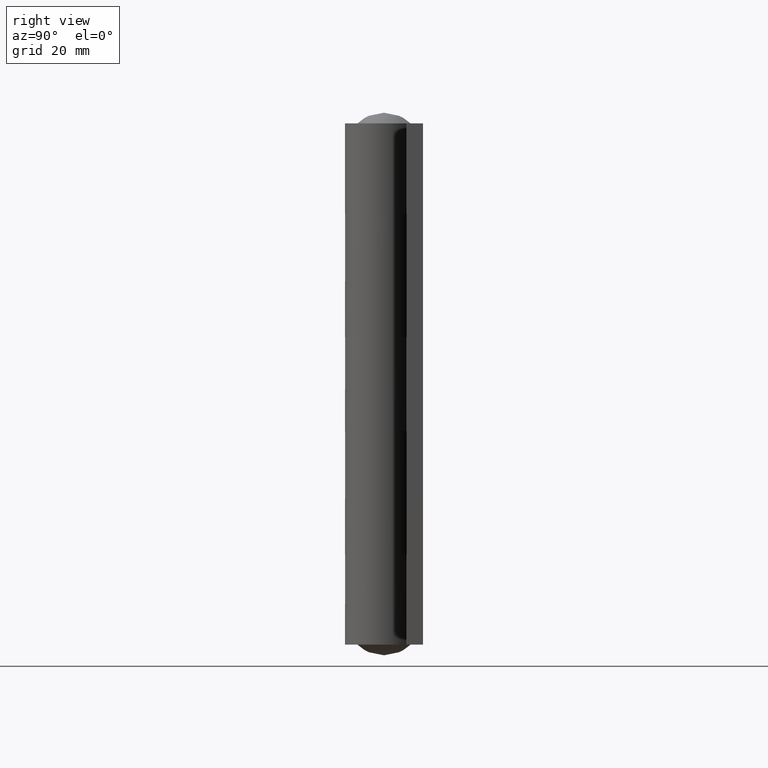
[diagram: clean part render]
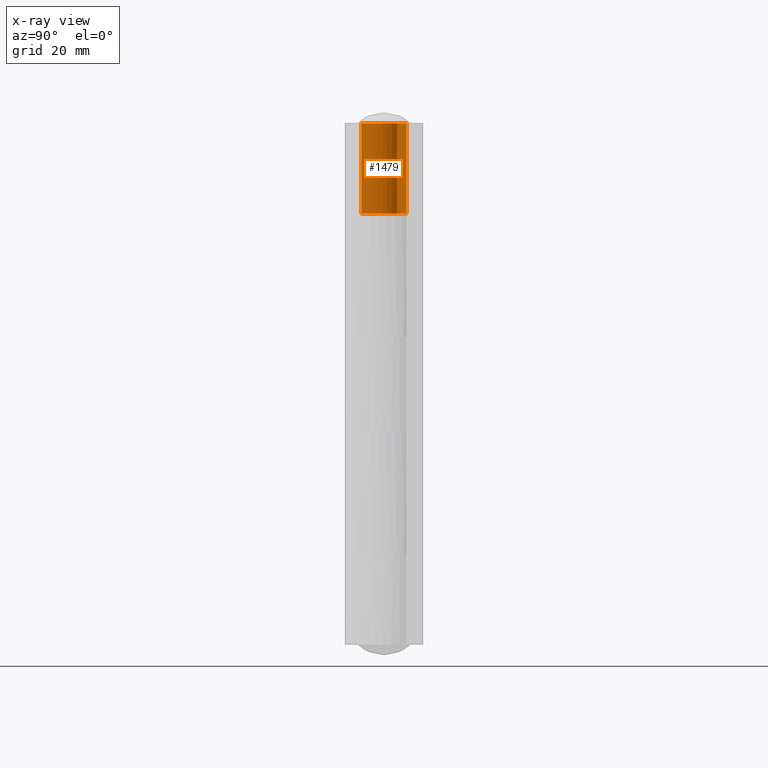
[diagram: x-ray — body ghosted, one internal face saturated and labeled with its STEP entity id]
A machine part, right view, then the same camera in x-ray: the body is ghosted and one INTERNAL B-rep face — a face not visible from any outside direction — is saturated and labeled: STEP entity #1479.
In plain terms, the highlighted face is a freeform B-spline surface patch.
Its self-contained STEP definition (entity closure, byte-faithful):
#1077=CARTESIAN_POINT('',(0.0,5.500000000000000,105.0));
#1078=VERTEX_POINT('',#1077);
#1084=CARTESIAN_POINT('',(4.504921131877020,3.155263157894740,105.0));
#1085=VERTEX_POINT('',#1084);
#1086=CARTESIAN_POINT('',(4.504921131877016,3.155263157894741,105.0));
#1087=CARTESIAN_POINT('',(6.981271274198795,-0.380341172970454,105.0));
#1088=CARTESIAN_POINT('',(4.135476776258408,-3.625993909678746,105.0));
#1089=CARTESIAN_POINT('',(1.289682278318024,-6.871646646387037,105.0));
#1090=CARTESIAN_POINT('',(-2.539296421410751,-4.878726645776596,105.0));
#1091=CARTESIAN_POINT('',(-6.368275121139528,-2.885806645166154,105.0));
#1092=CARTESIAN_POINT('',(-5.342424381859385,1.307096677416922,105.0));
#1093=CARTESIAN_POINT('',(-4.316573642579242,5.500000000000002,105.0));
#1094=CARTESIAN_POINT('',(0.0,5.500000000000000,105.0));
#1102=(BOUNDED_CURVE()B_SPLINE_CURVE(2,(#1086,#1087,#1088,#1089,#1090,#1091,#1092,#1093,#1094),.UNSPECIFIED.,.F.,.U.)B_SPLINE_CURVE_WITH_KNOTS((3,2,2,2,3),(0.0,0.250000000000000,0.500000000000000,0.750000000000000,1.0),.UNSPECIFIED.)CURVE()GEOMETRIC_REPRESENTATION_ITEM()RATIONAL_B_SPLINE_CURVE((1.0,0.786655560378407,1.0,0.786655560378407,1.0,0.786655560378407,1.0,0.786655560378407,1.0))REPRESENTATION_ITEM(''));
#1103=EDGE_CURVE('',#1085,#1078,#1102,.T.);
#1219=CARTESIAN_POINT('',(4.504921131877020,3.155263157894735,127.0));
#1220=VERTEX_POINT('',#1219);
#1226=CARTESIAN_POINT('',(0.0,5.500000000000000,127.0));
#1227=VERTEX_POINT('',#1226);
#1228=CARTESIAN_POINT('',(4.504921131877020,3.155263157894737,127.0));
#1229=CARTESIAN_POINT('',(6.981271274198794,-0.380341172970459,127.0));
#1230=CARTESIAN_POINT('',(4.135476776258405,-3.625993909678750,127.0));
#1231=CARTESIAN_POINT('',(1.289682278318015,-6.871646646387041,127.0));
#1232=CARTESIAN_POINT('',(-2.539296421410759,-4.878726645776591,127.0));
#1233=CARTESIAN_POINT('',(-6.368275121139526,-2.885806645166145,127.0));
#1234=CARTESIAN_POINT('',(-5.342424381859385,1.307096677416922,127.0));
#1235=CARTESIAN_POINT('',(-4.316573642579241,5.500000000000000,127.0));
#1236=CARTESIAN_POINT('',(0.0,5.500000000000000,127.0));
#1244=(BOUNDED_CURVE()B_SPLINE_CURVE(2,(#1228,#1229,#1230,#1231,#1232,#1233,#1234,#1235,#1236),.UNSPECIFIED.,.F.,.U.)B_SPLINE_CURVE_WITH_KNOTS((3,2,2,2,3),(0.0,0.250000000000000,0.500000000000000,0.750000000000000,1.0),.UNSPECIFIED.)CURVE()GEOMETRIC_REPRESENTATION_ITEM()RATIONAL_B_SPLINE_CURVE((1.0,0.786655560378407,1.0,0.786655560378407,1.0,0.786655560378407,1.0,0.786655560378407,1.0))REPRESENTATION_ITEM(''));
#1245=EDGE_CURVE('',#1220,#1227,#1244,.T.);
#1340=CARTESIAN_POINT('',(0.0,5.500000000000000,127.0));
#1341=CARTESIAN_POINT('',(0.0,5.500000000000000,105.0));
#1342=QUASI_UNIFORM_CURVE('',1,(#1340,#1341),.UNSPECIFIED.,.F.,.U.);
#1343=EDGE_CURVE('',#1227,#1078,#1342,.T.);
#1441=CARTESIAN_POINT('',(4.504921131877020,3.155263157894735,127.0));
#1442=CARTESIAN_POINT('',(4.504921131877020,3.155263157894740,105.0));
#1443=QUASI_UNIFORM_CURVE('',1,(#1441,#1442),.UNSPECIFIED.,.F.,.U.);
#1444=EDGE_CURVE('',#1220,#1085,#1443,.T.);
#1451=CARTESIAN_POINT('',(0.239183659999379,5.494796736621773,127.550000000000000));
#1452=CARTESIAN_POINT('',(0.239183659999379,5.494796736621773,104.436250000000000));
#1453=CARTESIAN_POINT('',(-6.793835443641496,5.800937860795292,127.550000000000010));
#1454=CARTESIAN_POINT('',(-6.793835443641496,5.800937860795292,104.436249999999990));
#1455=CARTESIAN_POINT('',(-5.389441554722914,-1.097232759365959,127.550000000000000));
#1456=CARTESIAN_POINT('',(-5.389441554722914,-1.097232759365959,104.436250000000000));
#1457=CARTESIAN_POINT('',(-3.985047665804334,-7.995403379527211,127.550000000000010));
#1458=CARTESIAN_POINT('',(-3.985047665804334,-7.995403379527211,104.436249999999990));
#1459=CARTESIAN_POINT('',(2.368464174284996,-4.963907478502039,127.550000000000000));
#1460=CARTESIAN_POINT('',(2.368464174284996,-4.963907478502039,104.436250000000000));
#1461=CARTESIAN_POINT('',(8.721976014374324,-1.932411577476869,127.550000000000010));
#1462=CARTESIAN_POINT('',(8.721976014374324,-1.932411577476869,104.436249999999990));
#1463=CARTESIAN_POINT('',(4.243474869317058,3.498988572927117,127.550000000000000));
#1464=CARTESIAN_POINT('',(4.243474869317058,3.498988572927117,104.436250000000000));
#1472=(BOUNDED_SURFACE()B_SPLINE_SURFACE(1,2,((#1451,#1453,#1455,#1457,#1459,#1461,#1463),(#1452,#1454,#1456,#1458,#1460,#1462,#1464)),.UNSPECIFIED.,.F.,.F.,.U.)B_SPLINE_SURFACE_WITH_KNOTS((2,2),(3,2,2,3),(0.0,23.113750000000021),(0.0,10.730116948448950,21.460233896897890,32.190350845346842),.UNSPECIFIED.)GEOMETRIC_REPRESENTATION_ITEM()RATIONAL_B_SPLINE_SURFACE(((1.0,0.615661475325658,1.0,0.615661475325658,1.0,0.615661475325658,1.0),(1.0,0.615661475325658,1.0,0.615661475325658,1.0,0.615661475325658,1.0)))REPRESENTATION_ITEM('')SURFACE());
#1473=ORIENTED_EDGE('',*,*,#1444,.T.);
#1474=ORIENTED_EDGE('',*,*,#1103,.T.);
#1475=ORIENTED_EDGE('',*,*,#1343,.F.);
#1476=ORIENTED_EDGE('',*,*,#1245,.F.);
#1477=EDGE_LOOP('',(#1473,#1474,#1475,#1476));
#1478=FACE_OUTER_BOUND('',#1477,.T.);
#1479=ADVANCED_FACE('',(#1478),#1472,.F.);